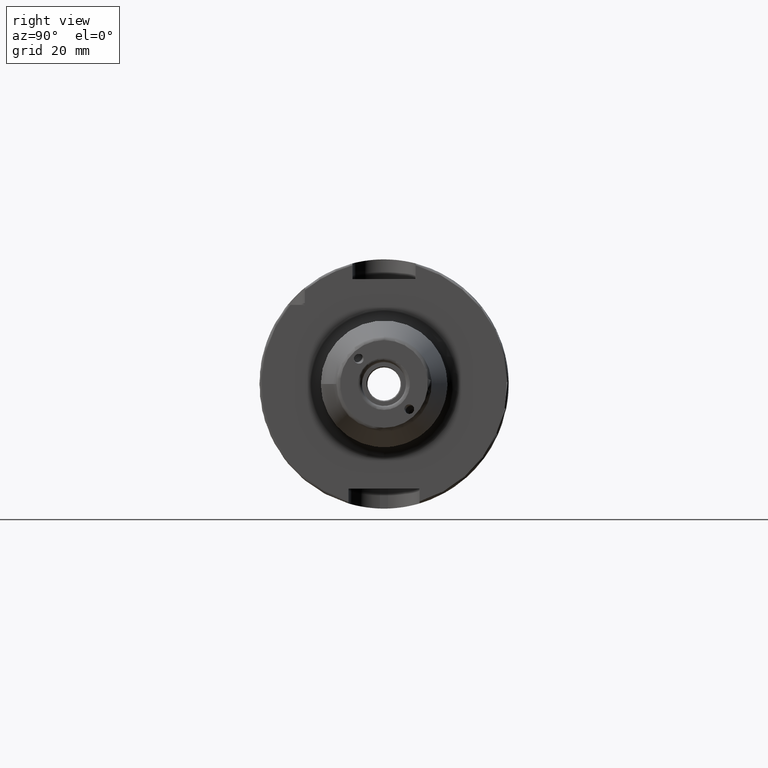
[diagram: clean part render]
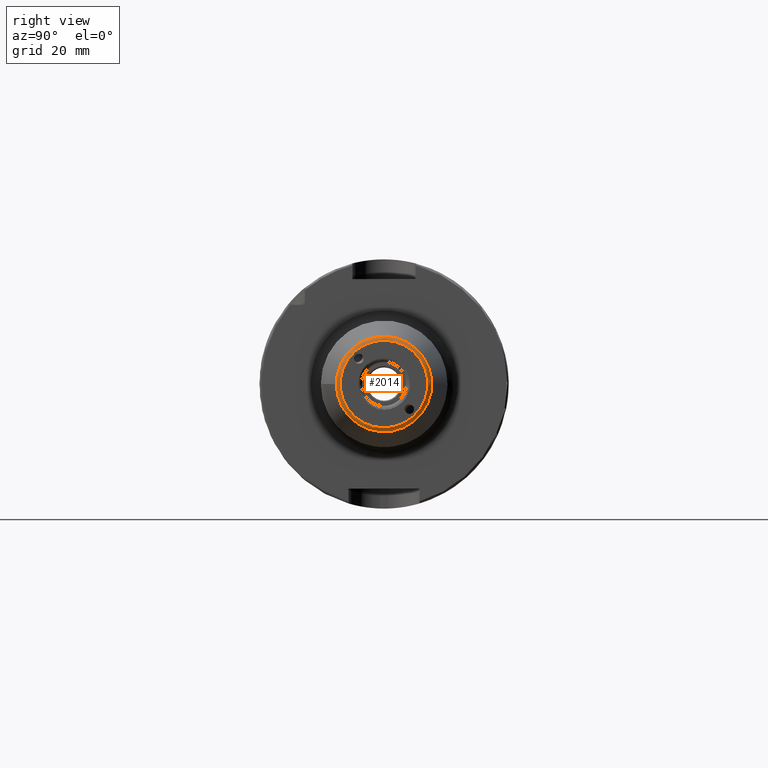
[diagram: same view with one face highlighted and labeled with its STEP entity id]
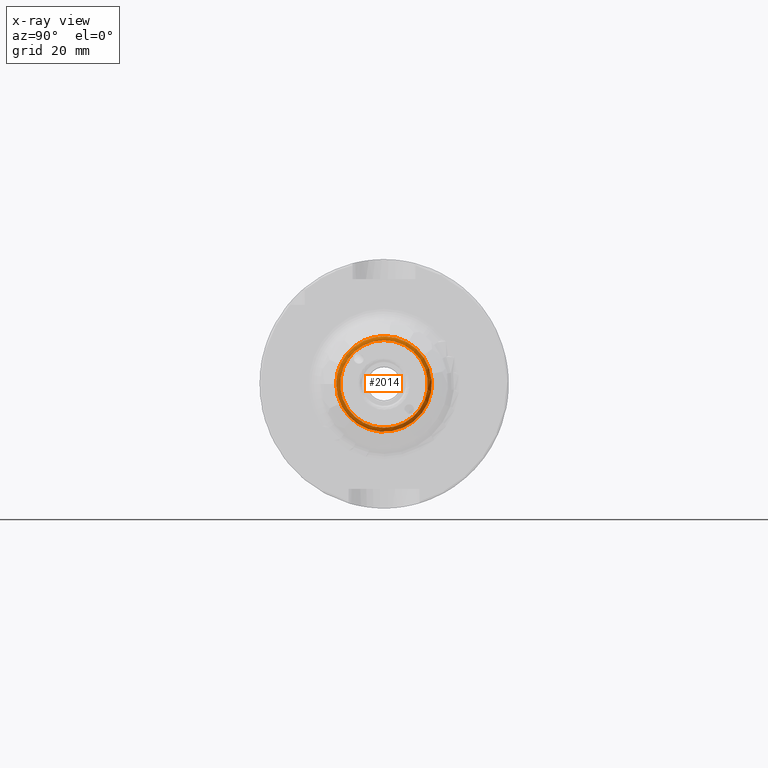
[diagram: x-ray of the same camera — body ghosted, the highlighted face saturated]
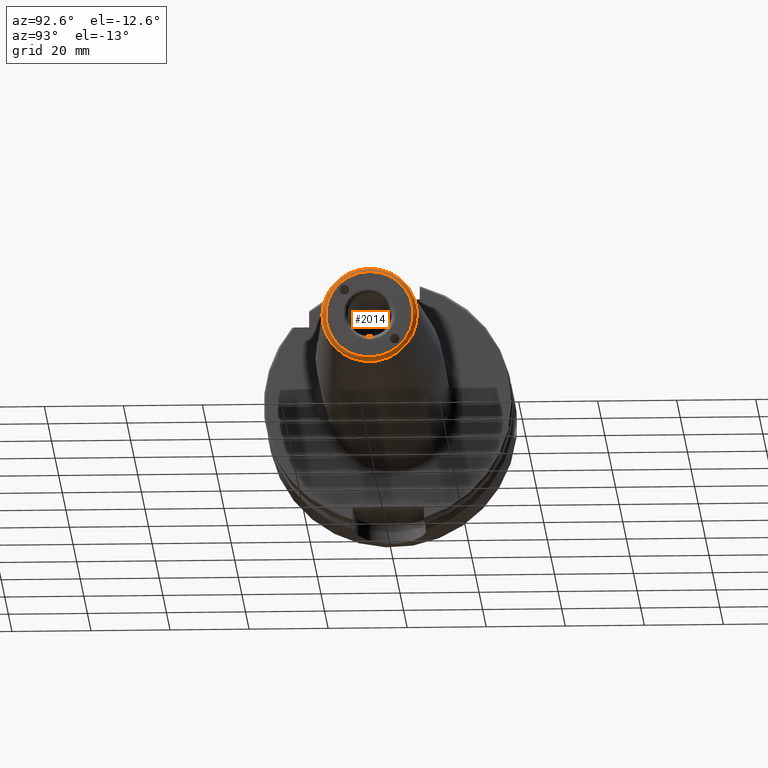
[diagram: same view with one face highlighted and labeled with its STEP entity id]
A machine part, right view. The second image highlights one B-rep face of the part: STEP entity #2014.
The next image is the same camera in x-ray: the body ghosted, the highlighted face saturated — about 0% of this face is hidden behind the body in this view.
A second angle (auxiliary view) of the same face is appended — the face is thin or edge-on in the first view.
In plain terms, the highlighted toroidal blend (fillet) surface has major radius 11.0756 mm and minor (blend) radius 1 mm.
Its self-contained STEP definition (entity closure, byte-faithful):
#145=TOROIDAL_SURFACE('',#2168,11.0756095083418,1.);
#221=FACE_OUTER_BOUND('',#345,.T.);
#345=EDGE_LOOP('',(#1376,#1377,#1378,#1379,#1380));
#695=CIRCLE('',#2165,11.0756095083418);
#697=CIRCLE('',#2169,1.);
#698=CIRCLE('',#2170,12.0725268420749);
#699=CIRCLE('',#2171,12.0725268420749);
#827=VERTEX_POINT('',#3065);
#829=VERTEX_POINT('',#3072);
#830=VERTEX_POINT('',#3074);
#1039=EDGE_CURVE('',#827,#827,#695,.T.);
#1042=EDGE_CURVE('',#827,#829,#697,.T.);
#1043=EDGE_CURVE('',#829,#830,#698,.T.);
#1044=EDGE_CURVE('',#830,#829,#699,.T.);
#1376=ORIENTED_EDGE('',*,*,#1039,.T.);
#1377=ORIENTED_EDGE('',*,*,#1042,.T.);
#1378=ORIENTED_EDGE('',*,*,#1043,.T.);
#1379=ORIENTED_EDGE('',*,*,#1044,.T.);
#1380=ORIENTED_EDGE('',*,*,#1042,.F.);
#2014=ADVANCED_FACE('',(#221),#145,.T.);
#2165=AXIS2_PLACEMENT_3D('',#3066,#2443,#2444);
#2168=AXIS2_PLACEMENT_3D('',#3071,#2450,#2451);
#2169=AXIS2_PLACEMENT_3D('',#3073,#2452,#2453);
#2170=AXIS2_PLACEMENT_3D('',#3075,#2454,#2455);
#2171=AXIS2_PLACEMENT_3D('',#3076,#2456,#2457);
#2443=DIRECTION('center_axis',(-1.,0.,0.));
#2444=DIRECTION('ref_axis',(0.,-1.,1.83697019872103E-16));
#2450=DIRECTION('center_axis',(1.,0.,0.));
#2451=DIRECTION('ref_axis',(0.,0.,-1.));
#2452=DIRECTION('center_axis',(0.,-1.,-1.22464679914735E-16));
#2453=DIRECTION('ref_axis',(0.,-1.22464679914735E-16,1.));
#2454=DIRECTION('center_axis',(1.,0.,0.));
#2455=DIRECTION('ref_axis',(0.,-1.,3.06161699786838E-17));
#2456=DIRECTION('center_axis',(1.,0.,0.));
#2457=DIRECTION('ref_axis',(0.,-1.,3.06161699786838E-17));
#3065=CARTESIAN_POINT('',(130.,-1.35637097329968E-15,11.0756095083418));
#3066=CARTESIAN_POINT('Origin',(130.,0.,0.));
#3071=CARTESIAN_POINT('Origin',(129.,0.,0.));
#3072=CARTESIAN_POINT('',(129.078459095728,-1.47845813547676E-15,12.0725268420749));
#3073=CARTESIAN_POINT('Origin',(129.,-1.35637097329968E-15,11.0756095083418));
#3074=CARTESIAN_POINT('',(129.078459095728,-12.0725268420749,-1.47845813547676E-15));
#3075=CARTESIAN_POINT('Origin',(129.078459095728,0.,-1.84807266934594E-15));
#3076=CARTESIAN_POINT('Origin',(129.078459095728,0.,-1.84807266934594E-15));